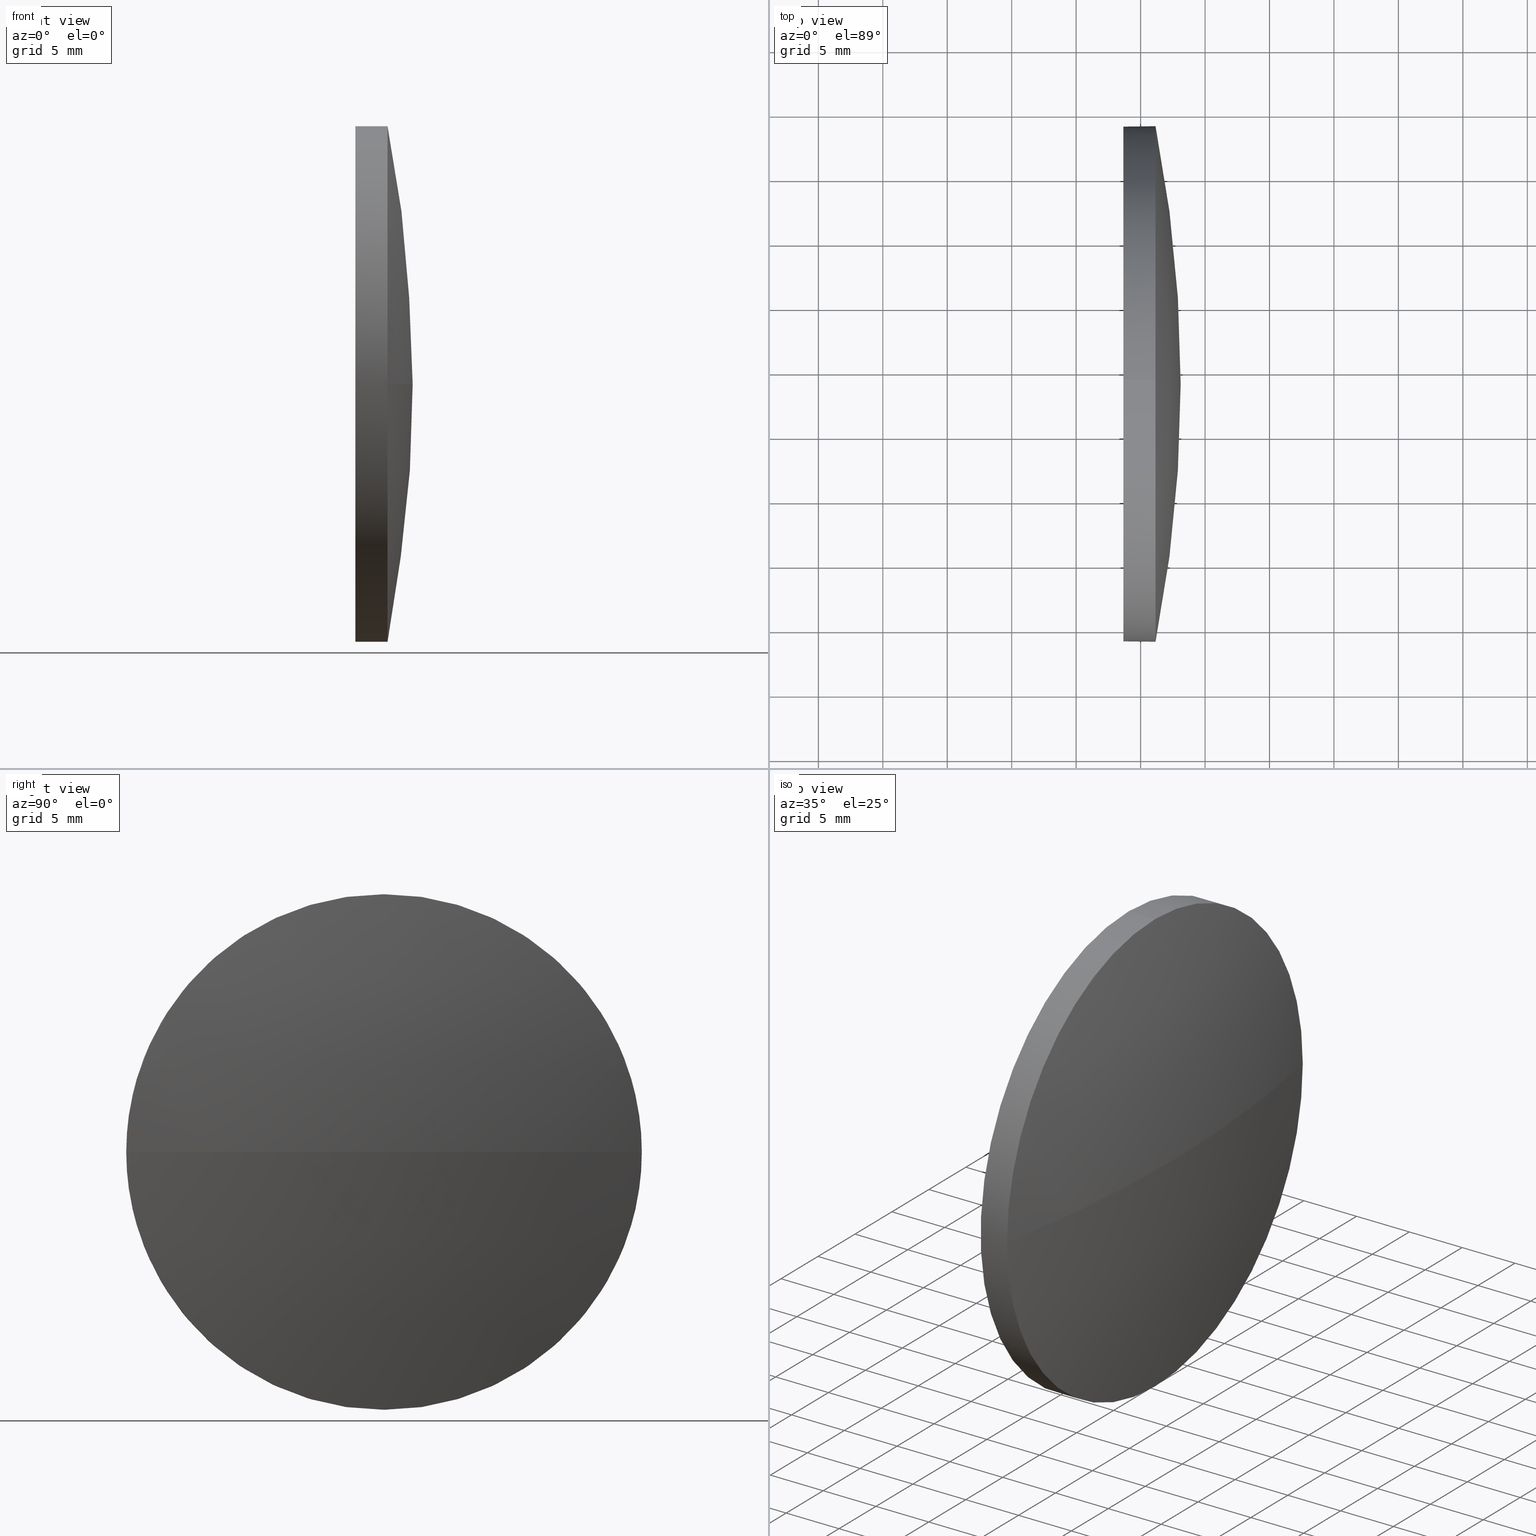
[diagram: canonical four-view strip — front | top / right | iso, engineering-drawing reading convention]
A machine part, canonical four-view strip (front | top / right | iso — engineering-drawing reading convention). The complete STEP part file that produces these views, byte-faithful:
ISO-10303-21;
HEADER;
FILE_DESCRIPTION (( 'STEP AP214' ),
    '1' );
FILE_NAME ('100061.STEP',
    '2019-04-30T05:47:59',
    ( '' ),
    ( '' ),
    'SwSTEP 2.0',
    'SolidWorks 2016',
    '' );
FILE_SCHEMA (( 'AUTOMOTIVE_DESIGN' ));
ENDSEC;

DATA;
#1 = EDGE_LOOP ( 'NONE', ( #103, #124, #113, #70 ) ) ;
#2 = CARTESIAN_POINT ( 'NONE',  ( 858.6588966541114600, 303.9353003407363200, 19.99999999999996100 ) ) ;
#3 = EDGE_CURVE ( 'NONE', #119, #85, #176, .T. ) ;
#4 = VERTEX_POINT ( 'NONE', #48 ) ;
#5 = DIRECTION ( 'NONE',  ( 0.0000000000000000000, 0.0000000000000000000, 1.000000000000000000 ) ) ;
#6 = CARTESIAN_POINT ( 'NONE',  ( 858.6588966541114600, 303.9353003407363200, 0.0000000000000000000 ) ) ;
#7 = MECHANICAL_DESIGN_GEOMETRIC_PRESENTATION_REPRESENTATION (  '', ( #133 ), #98 ) ;
#8 = CARTESIAN_POINT ( 'NONE',  ( 849.1523993343382700, 303.9353003407363200, 0.0000000000000000000 ) ) ;
#9 = AXIS2_PLACEMENT_3D ( 'NONE', #10, #39, #183 ) ;
#10 = CARTESIAN_POINT ( 'NONE',  ( 858.6588966541114600, 303.9353003407363200, 0.0000000000000000000 ) ) ;
#11 = CLOSED_SHELL ( 'NONE', ( #18, #180, #20, #166, #151 ) ) ;
#12 = ORIENTED_EDGE ( 'NONE', *, *, #83, .T. ) ;
#13 = AXIS2_PLACEMENT_3D ( 'NONE', #129, #131, #102 ) ;
#14 = CARTESIAN_POINT ( 'NONE',  ( 759.5697940900090500, 303.9353003407364300, 0.0000000000000000000 ) ) ;
#15 = CIRCLE ( 'NONE', #111, 19.99999999999996100 ) ;
#16 =( NAMED_UNIT ( * ) SI_UNIT ( $, .STERADIAN. ) SOLID_ANGLE_UNIT ( ) );
#17 = CARTESIAN_POINT ( 'NONE',  ( 759.5697940900090500, 303.9353003407364300, 0.0000000000000000000 ) ) ;
#18 = ADVANCED_FACE ( 'NONE', ( #26 ), #168, .T. ) ;
#19 = VECTOR ( 'NONE', #137, 1000.000000000000000 ) ;
#20 = ADVANCED_FACE ( 'NONE', ( #156 ), #171, .T. ) ;
#21 = DIRECTION ( 'NONE',  ( -1.000000000000000000, -0.0000000000000000000, -0.0000000000000000000 ) ) ;
#22 =( LENGTH_UNIT ( ) NAMED_UNIT ( * ) SI_UNIT ( .MILLI., .METRE. ) );
#23 = EDGE_CURVE ( 'NONE', #38, #67, #159, .T. ) ;
#24 = FILL_AREA_STYLE ('',( #79 ) ) ;
#25 = PRODUCT_DEFINITION_FORMATION_WITH_SPECIFIED_SOURCE ( '�κ�', '', #60, .NOT_KNOWN. ) ;
#26 = FACE_OUTER_BOUND ( 'NONE', #93, .T. ) ;
#27 = PRODUCT_RELATED_PRODUCT_CATEGORY ( 'part', '', ( #60 ) ) ;
#28 = CIRCLE ( 'NONE', #112, 19.99999999999996100 ) ;
#29 = ORIENTED_EDGE ( 'NONE', *, *, #68, .T. ) ;
#30 = CARTESIAN_POINT ( 'NONE',  ( 849.1523993343382700, 303.9353003407363200, 0.0000000000000000000 ) ) ;
#31 = FILL_AREA_STYLE ('',( #116 ) ) ;
#32 = AXIS2_PLACEMENT_3D ( 'NONE', #90, #56, #36 ) ;
#33 = PLANE ( 'NONE',  #9 ) ;
#34 = ORIENTED_EDGE ( 'NONE', *, *, #104, .T. ) ;
#35 = APPLICATION_CONTEXT ( 'automotive_design' ) ;
#36 = DIRECTION ( 'NONE',  ( -1.000000000000000000, 0.0000000000000000000, 0.0000000000000000000 ) ) ;
#37 = CIRCLE ( 'NONE', #32, 103.5391025641024800 ) ;
#38 = VERTEX_POINT ( 'NONE', #146 ) ;
#39 = DIRECTION ( 'NONE',  ( 1.000000000000000000, 0.0000000000000000000, 0.0000000000000000000 ) ) ;
#40 = UNCERTAINTY_MEASURE_WITH_UNIT (LENGTH_MEASURE( 1.000000000000000100E-005 ), #51, 'distance_accuracy_value', 'NONE');
#41 =( GEOMETRIC_REPRESENTATION_CONTEXT ( 3 ) GLOBAL_UNCERTAINTY_ASSIGNED_CONTEXT ( ( #71 ) ) GLOBAL_UNIT_ASSIGNED_CONTEXT ( ( #22, #162, #62 ) ) REPRESENTATION_CONTEXT ( 'NONE', 'WORKASPACE' ) );
#42 = DIRECTION ( 'NONE',  ( 1.000000000000000000, 0.0000000000000000000, 0.0000000000000000000 ) ) ;
#43 = SURFACE_SIDE_STYLE ('',( #173 ) ) ;
#44 = ORIENTED_EDGE ( 'NONE', *, *, #92, .T. ) ;
#45 = DIRECTION ( 'NONE',  ( 0.0000000000000000000, 0.0000000000000000000, 1.000000000000000000 ) ) ;
#46 = ORIENTED_EDGE ( 'NONE', *, *, #76, .F. ) ;
#47 = MANIFOLD_SOLID_BREP ( '��ת1', #11 ) ;
#48 = CARTESIAN_POINT ( 'NONE',  ( 861.1588966541114600, 283.9353003407364300, 0.0000000000000000000 ) ) ;
#49 = DIRECTION ( 'NONE',  ( 0.0000000000000000000, -1.000000000000000000, 0.0000000000000000000 ) ) ;
#50 = AXIS2_PLACEMENT_3D ( 'NONE', #118, #181, #52 ) ;
#51 =( LENGTH_UNIT ( ) NAMED_UNIT ( * ) SI_UNIT ( .MILLI., .METRE. ) );
#52 = DIRECTION ( 'NONE',  ( 0.0000000000000000000, 0.0000000000000000000, 1.000000000000000000 ) ) ;
#53 = CARTESIAN_POINT ( 'NONE',  ( 863.1088966541115000, 303.9353003407364300, 0.0000000000000000000 ) ) ;
#54 = DIRECTION ( 'NONE',  ( 0.0000000000000000000, 0.0000000000000000000, 1.000000000000000000 ) ) ;
#55 = DIRECTION ( 'NONE',  ( 0.0000000000000000000, 0.0000000000000000000, 1.000000000000000000 ) ) ;
#56 = DIRECTION ( 'NONE',  ( 0.0000000000000000000, 0.0000000000000000000, -1.000000000000000000 ) ) ;
#57 = APPLICATION_CONTEXT ( 'automotive_design' ) ;
#58 = ORIENTED_EDGE ( 'NONE', *, *, #104, .F. ) ;
#59 = APPLICATION_PROTOCOL_DEFINITION ( 'draft international standard', 'automotive_design', 1998, #35 ) ;
#60 = PRODUCT ( '100061', '100061', '', ( #184 ) ) ;
#61 = DIRECTION ( 'NONE',  ( -1.000000000000000000, -0.0000000000000000000, -0.0000000000000000000 ) ) ;
#62 =( NAMED_UNIT ( * ) SI_UNIT ( $, .STERADIAN. ) SOLID_ANGLE_UNIT ( ) );
#63 = DIRECTION ( 'NONE',  ( -1.000000000000000000, -0.0000000000000000000, -0.0000000000000000000 ) ) ;
#64 = CARTESIAN_POINT ( 'NONE',  ( 849.1523993343382700, 303.9353003407363200, 19.99999999999996100 ) ) ;
#65 = DIRECTION ( 'NONE',  ( 0.0000000000000000000, -1.000000000000000000, 0.0000000000000000000 ) ) ;
#66 = COLOUR_RGB ( '',1.000000000000000000, 1.000000000000000000, 1.000000000000000000 ) ;
#67 = VERTEX_POINT ( 'NONE', #101 ) ;
#68 = EDGE_CURVE ( 'NONE', #4, #119, #15, .T. ) ;
#69 = LINE ( 'NONE', #64, #19 ) ;
#70 = ORIENTED_EDGE ( 'NONE', *, *, #68, .F. ) ;
#71 = UNCERTAINTY_MEASURE_WITH_UNIT (LENGTH_MEASURE( 1.000000000000000100E-005 ), #22, 'distance_accuracy_value', 'NONE');
#72 = CIRCLE ( 'NONE', #136, 19.99999999999996100 ) ;
#73 = VERTEX_POINT ( 'NONE', #2 ) ;
#74 = SURFACE_STYLE_USAGE ( .BOTH. , #148 ) ;
#75 = ORIENTED_EDGE ( 'NONE', *, *, #83, .F. ) ;
#76 = EDGE_CURVE ( 'NONE', #73, #67, #97, .T. ) ;
#77 = DIRECTION ( 'NONE',  ( -1.000000000000000000, -0.0000000000000000000, -0.0000000000000000000 ) ) ;
#78 = CARTESIAN_POINT ( 'NONE',  ( 861.1588966541114600, 303.9353003407363200, 0.0000000000000000000 ) ) ;
#79 = FILL_AREA_STYLE_COLOUR ( '', #66 ) ;
#80 = ORIENTED_EDGE ( 'NONE', *, *, #92, .F. ) ;
#81 = MECHANICAL_DESIGN_GEOMETRIC_PRESENTATION_REPRESENTATION (  '', ( #94 ), #172 ) ;
#82 = SPHERICAL_SURFACE ( 'NONE', #125, 103.5391025641024500 ) ;
#83 = EDGE_CURVE ( 'NONE', #38, #4, #169, .T. ) ;
#84 = FACE_OUTER_BOUND ( 'NONE', #1, .T. ) ;
#85 = VERTEX_POINT ( 'NONE', #154 ) ;
#86 = ADVANCED_BREP_SHAPE_REPRESENTATION ( '100061', ( #47, #89 ), #41 ) ;
#87 = PRESENTATION_STYLE_ASSIGNMENT (( #122 ) ) ;
#88 = ORIENTED_EDGE ( 'NONE', *, *, #76, .T. ) ;
#89 = AXIS2_PLACEMENT_3D ( 'NONE', #152, #45, #42 ) ;
#90 = CARTESIAN_POINT ( 'NONE',  ( 759.5697940900090500, 303.9353003407364300, 0.0000000000000000000 ) ) ;
#91 = DIRECTION ( 'NONE',  ( -1.000000000000000000, -0.0000000000000000000, -0.0000000000000000000 ) ) ;
#92 = EDGE_CURVE ( 'NONE', #119, #73, #69, .T. ) ;
#93 = EDGE_LOOP ( 'NONE', ( #142, #117, #46, #80, #127 ) ) ;
#94 = STYLED_ITEM ( 'NONE', ( #87 ), #86 ) ;
#95 =( NAMED_UNIT ( * ) PLANE_ANGLE_UNIT ( ) SI_UNIT ( $, .RADIAN. ) );
#96 = EDGE_CURVE ( 'NONE', #85, #38, #28, .T. ) ;
#97 = CIRCLE ( 'NONE', #121, 19.99999999999996100 ) ;
#98 =( GEOMETRIC_REPRESENTATION_CONTEXT ( 3 ) GLOBAL_UNCERTAINTY_ASSIGNED_CONTEXT ( ( #40 ) ) GLOBAL_UNIT_ASSIGNED_CONTEXT ( ( #51, #178, #16 ) ) REPRESENTATION_CONTEXT ( 'NONE', 'WORKASPACE' ) );
#99 = EDGE_LOOP ( 'NONE', ( #88, #34 ) ) ;
#100 = AXIS2_PLACEMENT_3D ( 'NONE', #8, #91, #165 ) ;
#101 = CARTESIAN_POINT ( 'NONE',  ( 858.6588966541114600, 303.9353003407363200, -19.99999999999996100 ) ) ;
#102 = DIRECTION ( 'NONE',  ( 0.0000000000000000000, 0.0000000000000000000, 1.000000000000000000 ) ) ;
#103 = ORIENTED_EDGE ( 'NONE', *, *, #114, .F. ) ;
#104 = EDGE_CURVE ( 'NONE', #67, #73, #72, .T. ) ;
#105 = CARTESIAN_POINT ( 'NONE',  ( 861.1588966541114600, 303.9353003407363200, 19.99999999999996100 ) ) ;
#106 = DIRECTION ( 'NONE',  ( 0.0000000000000000000, 0.0000000000000000000, 1.000000000000000000 ) ) ;
#107 = ORIENTED_EDGE ( 'NONE', *, *, #126, .F. ) ;
#108 = DIRECTION ( 'NONE',  ( -1.000000000000000000, -0.0000000000000000000, -0.0000000000000000000 ) ) ;
#109 = COLOUR_RGB ( '',1.000000000000000000, 1.000000000000000000, 1.000000000000000000 ) ;
#110 = PRESENTATION_LAYER_ASSIGNMENT (  '', '', ( #94 ) ) ;
#111 = AXIS2_PLACEMENT_3D ( 'NONE', #78, #77, #54 ) ;
#112 = AXIS2_PLACEMENT_3D ( 'NONE', #132, #21, #164 ) ;
#113 = ORIENTED_EDGE ( 'NONE', *, *, #3, .F. ) ;
#114 = EDGE_CURVE ( 'NONE', #161, #4, #37, .T. ) ;
#115 = DIRECTION ( 'NONE',  ( -1.000000000000000000, -0.0000000000000000000, -0.0000000000000000000 ) ) ;
#116 = FILL_AREA_STYLE_COLOUR ( '', #109 ) ;
#117 = ORIENTED_EDGE ( 'NONE', *, *, #23, .T. ) ;
#118 = CARTESIAN_POINT ( 'NONE',  ( 861.1588966541114600, 303.9353003407363200, 0.0000000000000000000 ) ) ;
#119 = VERTEX_POINT ( 'NONE', #105 ) ;
#120 = CARTESIAN_POINT ( 'NONE',  ( 759.5697940900090500, 303.9353003407364300, 0.0000000000000000000 ) ) ;
#121 = AXIS2_PLACEMENT_3D ( 'NONE', #6, #63, #106 ) ;
#122 = SURFACE_STYLE_USAGE ( .BOTH. , #43 ) ;
#123 = FACE_OUTER_BOUND ( 'NONE', #157, .T. ) ;
#124 = ORIENTED_EDGE ( 'NONE', *, *, #126, .T. ) ;
#125 = AXIS2_PLACEMENT_3D ( 'NONE', #120, #55, #65 ) ;
#126 = EDGE_CURVE ( 'NONE', #161, #85, #158, .T. ) ;
#127 = ORIENTED_EDGE ( 'NONE', *, *, #3, .T. ) ;
#128 = FACE_OUTER_BOUND ( 'NONE', #99, .T. ) ;
#129 = CARTESIAN_POINT ( 'NONE',  ( 861.1588966541114600, 303.9353003407363200, 0.0000000000000000000 ) ) ;
#130 = ORIENTED_EDGE ( 'NONE', *, *, #96, .F. ) ;
#131 = DIRECTION ( 'NONE',  ( -1.000000000000000000, -0.0000000000000000000, -0.0000000000000000000 ) ) ;
#132 = CARTESIAN_POINT ( 'NONE',  ( 861.1588966541114600, 303.9353003407363200, 0.0000000000000000000 ) ) ;
#133 = STYLED_ITEM ( 'NONE', ( #140 ), #47 ) ;
#134 = PRODUCT_DEFINITION_SHAPE ( 'NONE', 'NONE',  #177 ) ;
#135 = DIRECTION ( 'NONE',  ( 0.0000000000000000000, -1.224646799147353200E-016, 1.000000000000000000 ) ) ;
#136 = AXIS2_PLACEMENT_3D ( 'NONE', #150, #108, #179 ) ;
#137 = DIRECTION ( 'NONE',  ( -1.000000000000000000, -0.0000000000000000000, -0.0000000000000000000 ) ) ;
#138 = DIRECTION ( 'NONE',  ( 0.0000000000000000000, -1.000000000000000000, -1.224646799147353200E-016 ) ) ;
#139 = UNCERTAINTY_MEASURE_WITH_UNIT (LENGTH_MEASURE( 1.000000000000000100E-005 ), #141, 'distance_accuracy_value', 'NONE');
#140 = PRESENTATION_STYLE_ASSIGNMENT (( #74 ) ) ;
#141 =( LENGTH_UNIT ( ) NAMED_UNIT ( * ) SI_UNIT ( .MILLI., .METRE. ) );
#142 = ORIENTED_EDGE ( 'NONE', *, *, #96, .T. ) ;
#143 = AXIS2_PLACEMENT_3D ( 'NONE', #17, #135, #138 ) ;
#144 = ORIENTED_EDGE ( 'NONE', *, *, #114, .T. ) ;
#145 = DIRECTION ( 'NONE',  ( 0.0000000000000000000, 0.0000000000000000000, 1.000000000000000000 ) ) ;
#146 = CARTESIAN_POINT ( 'NONE',  ( 861.1588966541114600, 303.9353003407363200, -19.99999999999996100 ) ) ;
#147 = EDGE_LOOP ( 'NONE', ( #107, #144, #75, #130 ) ) ;
#148 = SURFACE_SIDE_STYLE ('',( #182 ) ) ;
#149 = VECTOR ( 'NONE', #115, 1000.000000000000000 ) ;
#150 = CARTESIAN_POINT ( 'NONE',  ( 858.6588966541114600, 303.9353003407363200, 0.0000000000000000000 ) ) ;
#151 = ADVANCED_FACE ( 'NONE', ( #128 ), #33, .F. ) ;
#152 = CARTESIAN_POINT ( 'NONE',  ( 0.0000000000000000000, 0.0000000000000000000, 0.0000000000000000000 ) ) ;
#153 = PRODUCT_DEFINITION_CONTEXT ( 'detailed design', #57, 'design' ) ;
#154 = CARTESIAN_POINT ( 'NONE',  ( 861.1588966541114600, 323.9353003407363200, 2.449293598294688800E-015 ) ) ;
#155 = APPLICATION_PROTOCOL_DEFINITION ( 'draft international standard', 'automotive_design', 1998, #57 ) ;
#156 = FACE_OUTER_BOUND ( 'NONE', #147, .T. ) ;
#157 = EDGE_LOOP ( 'NONE', ( #186, #12, #29, #44, #58 ) ) ;
#158 = CIRCLE ( 'NONE', #143, 103.5391025641024500 ) ;
#159 = LINE ( 'NONE', #160, #149 ) ;
#160 = CARTESIAN_POINT ( 'NONE',  ( 849.1523993343382700, 303.9353003407363200, -19.99999999999996100 ) ) ;
#161 = VERTEX_POINT ( 'NONE', #53 ) ;
#162 =( NAMED_UNIT ( * ) PLANE_ANGLE_UNIT ( ) SI_UNIT ( $, .RADIAN. ) );
#163 = AXIS2_PLACEMENT_3D ( 'NONE', #14, #5, #49 ) ;
#164 = DIRECTION ( 'NONE',  ( 0.0000000000000000000, 0.0000000000000000000, 1.000000000000000000 ) ) ;
#165 = DIRECTION ( 'NONE',  ( 0.0000000000000000000, 0.0000000000000000000, 1.000000000000000000 ) ) ;
#166 = ADVANCED_FACE ( 'NONE', ( #123 ), #175, .T. ) ;
#167 = SHAPE_DEFINITION_REPRESENTATION ( #134, #86 ) ;
#168 = CYLINDRICAL_SURFACE ( 'NONE', #174, 19.99999999999996100 ) ;
#169 = CIRCLE ( 'NONE', #50, 19.99999999999996100 ) ;
#170 =( NAMED_UNIT ( * ) SI_UNIT ( $, .STERADIAN. ) SOLID_ANGLE_UNIT ( ) );
#171 = SPHERICAL_SURFACE ( 'NONE', #163, 103.5391025641024500 ) ;
#172 =( GEOMETRIC_REPRESENTATION_CONTEXT ( 3 ) GLOBAL_UNCERTAINTY_ASSIGNED_CONTEXT ( ( #139 ) ) GLOBAL_UNIT_ASSIGNED_CONTEXT ( ( #141, #95, #170 ) ) REPRESENTATION_CONTEXT ( 'NONE', 'WORKASPACE' ) );
#173 = SURFACE_STYLE_FILL_AREA ( #24 ) ;
#174 = AXIS2_PLACEMENT_3D ( 'NONE', #30, #61, #145 ) ;
#175 = CYLINDRICAL_SURFACE ( 'NONE', #100, 19.99999999999996100 ) ;
#176 = CIRCLE ( 'NONE', #13, 19.99999999999996100 ) ;
#177 = PRODUCT_DEFINITION ( 'δ֪', '', #25, #153 ) ;
#178 =( NAMED_UNIT ( * ) PLANE_ANGLE_UNIT ( ) SI_UNIT ( $, .RADIAN. ) );
#179 = DIRECTION ( 'NONE',  ( 0.0000000000000000000, 0.0000000000000000000, 1.000000000000000000 ) ) ;
#180 = ADVANCED_FACE ( 'NONE', ( #84 ), #82, .T. ) ;
#181 = DIRECTION ( 'NONE',  ( -1.000000000000000000, -0.0000000000000000000, -0.0000000000000000000 ) ) ;
#182 = SURFACE_STYLE_FILL_AREA ( #31 ) ;
#183 = DIRECTION ( 'NONE',  ( 0.0000000000000000000, 0.0000000000000000000, -1.000000000000000000 ) ) ;
#184 = PRODUCT_CONTEXT ( 'NONE', #35, 'mechanical' ) ;
#185 = PRESENTATION_LAYER_ASSIGNMENT (  '', '', ( #133 ) ) ;
#186 = ORIENTED_EDGE ( 'NONE', *, *, #23, .F. ) ;
ENDSEC;
END-ISO-10303-21;
